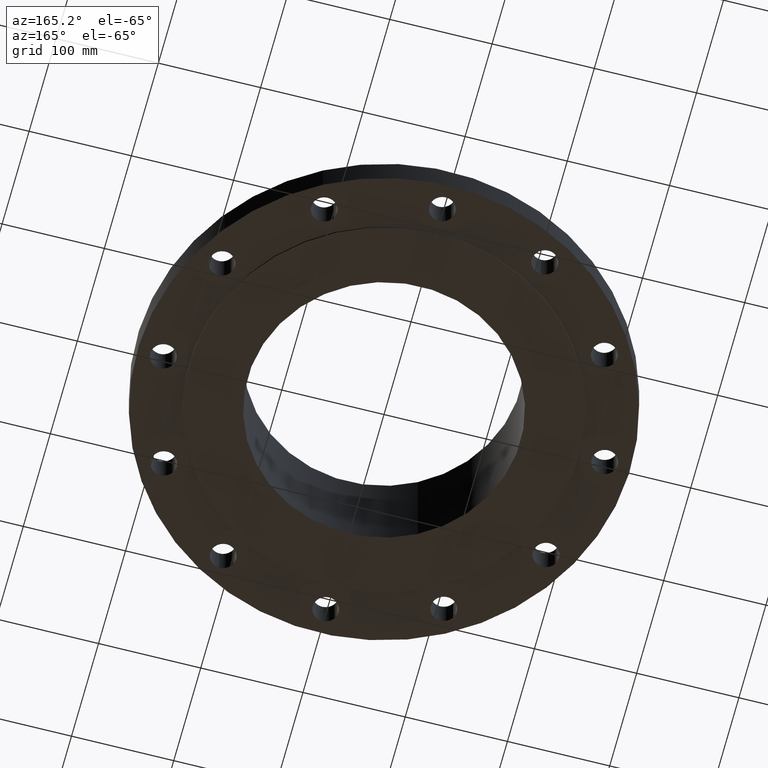
[diagram: clean part render]
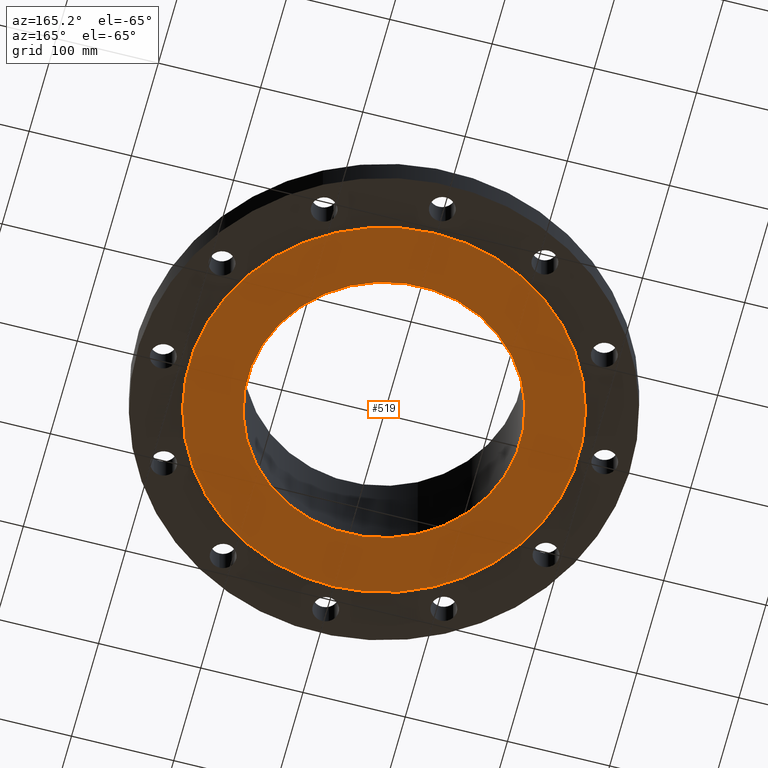
[diagram: same view with one face highlighted and labeled with its STEP entity id]
A machine part, auxiliary view. The second image highlights one B-rep face of the part: STEP entity #519.
In plain terms, the highlighted planar face has unit normal (0, 0, -1).
Its self-contained STEP definition (entity closure, byte-faithful):
#463=AXIS2_PLACEMENT_3D('Circle Axis2P3D',#461,#462,$) ;
#482=AXIS2_PLACEMENT_3D('Circle Axis2P3D',#480,#481,$) ;
#495=AXIS2_PLACEMENT_3D('Plane Axis2P3D',#492,#493,#494) ;
#499=AXIS2_PLACEMENT_3D('Circle Axis2P3D',#497,#498,$) ;
#508=AXIS2_PLACEMENT_3D('Circle Axis2P3D',#506,#507,$) ;
#458=CARTESIAN_POINT('Vertex',(2.51698407768,4.60730844994,-0.0630000000003)) ;
#461=CARTESIAN_POINT('Axis2P3D Location',(0.,0.,-0.0630000000003)) ;
#465=CARTESIAN_POINT('Vertex',(-2.51698407768,-4.60730844994,-0.0630000000003)) ;
#480=CARTESIAN_POINT('Axis2P3D Location',(0.,0.,-0.0630000000003)) ;
#492=CARTESIAN_POINT('Axis2P3D Location',(0.,5.25000000002,-0.0630000000003)) ;
#497=CARTESIAN_POINT('Axis2P3D Location',(0.,0.,-0.0630000000003)) ;
#501=CARTESIAN_POINT('Vertex',(-3.59569153955,-6.5818692142,-0.0630000000003)) ;
#503=CARTESIAN_POINT('Vertex',(3.59569153955,6.5818692142,-0.0630000000003)) ;
#506=CARTESIAN_POINT('Axis2P3D Location',(0.,0.,-0.0630000000003)) ;
#462=DIRECTION('Axis2P3D Direction',(0.,0.,-0.0393700787402)) ;
#481=DIRECTION('Axis2P3D Direction',(0.,0.,-0.0393700787402)) ;
#493=DIRECTION('Axis2P3D Direction',(0.,0.,-0.0393700787402)) ;
#494=DIRECTION('Axis2P3D XDirection',(0.0393700787402,0.,0.)) ;
#498=DIRECTION('Axis2P3D Direction',(0.,0.,-0.0393700787402)) ;
#507=DIRECTION('Axis2P3D Direction',(0.,0.,-0.0393700787402)) ;
#512=ORIENTED_EDGE('',*,*,#505,.T.) ;
#513=ORIENTED_EDGE('',*,*,#510,.T.) ;
#516=ORIENTED_EDGE('',*,*,#467,.F.) ;
#517=ORIENTED_EDGE('',*,*,#484,.F.) ;
#518=FACE_BOUND('',#515,.T.) ;
#519=ADVANCED_FACE('PartBody',(#514,#518),#496,.T.) ;
#464=CIRCLE('generated circle',#463,5.25000000002) ;
#483=CIRCLE('generated circle',#482,5.25000000002) ;
#500=CIRCLE('generated circle',#499,7.50000000003) ;
#509=CIRCLE('generated circle',#508,7.50000000003) ;
#467=EDGE_CURVE('',#459,#466,#464,.T.) ;
#484=EDGE_CURVE('',#466,#459,#483,.T.) ;
#505=EDGE_CURVE('',#502,#504,#500,.T.) ;
#510=EDGE_CURVE('',#504,#502,#509,.T.) ;
#511=EDGE_LOOP('',(#512,#513)) ;
#515=EDGE_LOOP('',(#516,#517)) ;
#514=FACE_OUTER_BOUND('',#511,.T.) ;
#496=PLANE('',#495) ;
#459=VERTEX_POINT('',#458) ;
#466=VERTEX_POINT('',#465) ;
#502=VERTEX_POINT('',#501) ;
#504=VERTEX_POINT('',#503) ;